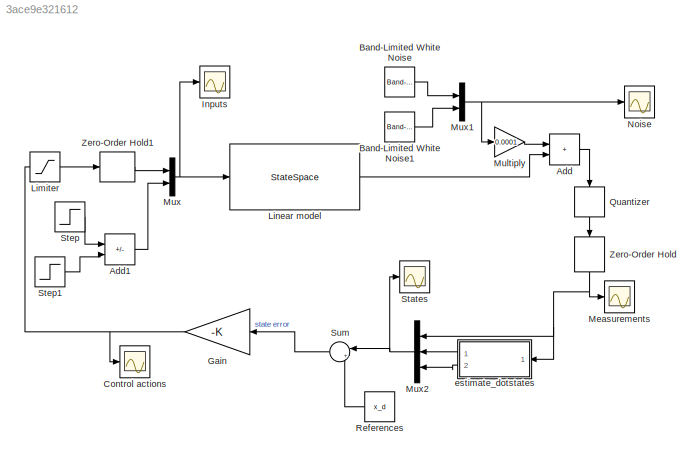
MODEL slx_3ace9e321612
KIND model
CONFIG AbsTol = auto
CONFIG EnableMultiTasking = off
CONFIG FixedStep = auto
CONFIG MaxStep = auto
CONFIG MinStep = auto
CONFIG RelTol = 1e-3
CONFIG SampleTimeConstraint = Unconstrained
CONFIG SolverName = VariableStepAuto
CONFIG StartTime = 0.0
CONFIG StopTime = 20
BLOCK [Sum] Add
  IconShape = rectangular
  Ports = [2, 1]
BLOCK [Sum] Add1
  IconShape = rectangular
  Inputs = +-
  Ports = [2, 1]
BLOCK [Reference] Band-Limited White Noise  REF=simulink/Sources/Band-Limited
White Noise
  Ports = [0, 1]
  SourceBlock = simulink/Sources/Band-Limited\nWhite Noise
  SourceProductBaseCode = SL
  SourceType = Band-Limited White Noise.
BLOCK [Reference] Band-Limited White Noise1  REF=simulink/Sources/Band-Limited
White Noise
  Ports = [0, 1]
  SourceBlock = simulink/Sources/Band-Limited\nWhite Noise
  SourceProductBaseCode = SL
  SourceType = Band-Limited White Noise.
BLOCK [Scope] Control actions
  Floating = off
  NumInputPorts = 1
  Ports = [1]
  ScopeSpecificationString = Simulink.scopes.TimeScopeBlockCfg('CurrentConfiguration', extmgr.ConfigurationSet(extmgr.Configuration('Core','General UI',true),extmgr.Configuration('Core','Source UI',true),extmgr.Configuration('Sources','WiredSimulink',true,'DataLoggingVariableName','ScopeData3'),extmgr.Configuration('Visuals','Time Domain',true,'SerializedDisplays',{struct('MinYLimReal','-7.81483','MaxYLimReal','2.23585','YLab...<+1422ch>
BLOCK [Gain] Gain
  Gain = -K
  Multiplication = Matrix(K*u) (u vector)
BLOCK [Scope] Inputs
  Floating = off
  NumInputPorts = 1
  Ports = [1]
  ScopeSpecificationString = Simulink.scopes.TimeScopeBlockCfg('CurrentConfiguration', extmgr.ConfigurationSet(extmgr.Configuration('Core','General UI',true),extmgr.Configuration('Core','Source UI',true),extmgr.Configuration('Sources','WiredSimulink',true,'DataLoggingVariableName','ScopeData2'),extmgr.Configuration('Visuals','Time Domain',true,'SerializedDisplays',{struct('MinYLimReal','0.03347','MaxYLimReal','0.15072','YLabe...<+1421ch>
BLOCK [Saturate] Limiter
  LowerLimit = -5
  UpperLimit = 5
BLOCK [StateSpace] Linear model
  A = sys.A
  B = [sys.B,dist]
  C = sys.C
  D = [sys.D,zeros(2,1)]
  InitialCondition = initial_conditions'
  Ports = [1, 1]
BLOCK [Scope] Measurements
  Floating = off
  NumInputPorts = 1
  Ports = [1]
  ScopeSpecificationString = Simulink.scopes.TimeScopeBlockCfg('CurrentConfiguration', extmgr.ConfigurationSet(extmgr.Configuration('Core','General UI',true),extmgr.Configuration('Core','Source UI',true),extmgr.Configuration('Sources','WiredSimulink',true,'DataLoggingVariableName','ScopeData3'),extmgr.Configuration('Visuals','Time Domain',true,'SerializedDisplays',{struct('MinYLimReal','-0.1268','MaxYLimReal','0.05783','YLabe...<+1495ch>
BLOCK [Gain] Multiply
  Gain = 0.0001
BLOCK [Mux] Mux
  DisplayOption = bar
  Inputs = 2
  Ports = [2, 1]
BLOCK [Mux] Mux1
  DisplayOption = bar
  Inputs = 2
  Ports = [2, 1]
BLOCK [Mux] Mux2
  DisplayOption = bar
  Inputs = 3
  Ports = [3, 1]
BLOCK [Scope] Noise
  Floating = off
  NumInputPorts = 1
  Ports = [1]
  ScopeSpecificationString = Simulink.scopes.TimeScopeBlockCfg('CurrentConfiguration', extmgr.ConfigurationSet(extmgr.Configuration('Core','General UI',true),extmgr.Configuration('Core','Source UI',true),extmgr.Configuration('Sources','WiredSimulink',true,'DataLoggingVariableName','ScopeData4'),extmgr.Configuration('Visuals','Time Domain',true,'SerializedDisplays',{struct('MinYLimReal','-20.79644','MaxYLimReal','21.90807','YL...<+1417ch>
BLOCK [Quantizer] Quantizer
  NameLocation = left
  QuantizationInterval = quantisation_step
BLOCK [Constant] References
  Value = x_d
BLOCK [Scope] States
  Floating = off
  NumInputPorts = 1
  Ports = [1]
  ScopeSpecificationString = Simulink.scopes.TimeScopeBlockCfg('CurrentConfiguration', extmgr.ConfigurationSet(extmgr.Configuration('Core','General UI',true),extmgr.Configuration('Core','Source UI',true),extmgr.Configuration('Sources','WiredSimulink',true,'DataLoggingVariableName','ScopeData1'),extmgr.Configuration('Visuals','Time Domain',true,'SerializedDisplays',{struct('MinYLimReal','-0.76845','MaxYLimReal','0.32583','YLab...<+1542ch>
BLOCK [Step] Step
  SampleTime = Ts
  Time = 8
BLOCK [Step] Step1
  SampleTime = Ts
  Time = 8.1
BLOCK [Sum] Sum
  Inputs = |+-
  NameLocation = top
  Ports = [2, 1]
BLOCK [ZeroOrderHold] Zero-Order Hold
  NameLocation = left
  SampleTime = Ts
BLOCK [ZeroOrderHold] Zero-Order Hold1
  SampleTime = Ts
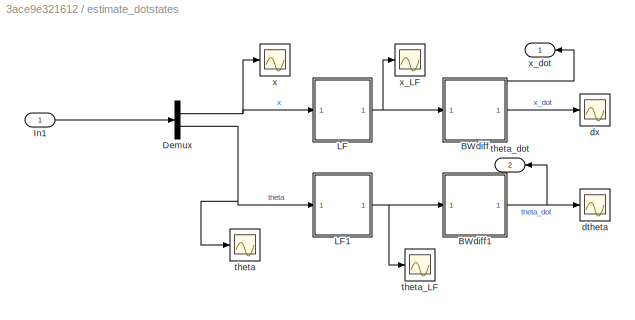
BLOCK [SubSystem] estimate_dotstates
  Ports = [1, 2]
  RequestExecContextInheritance = off
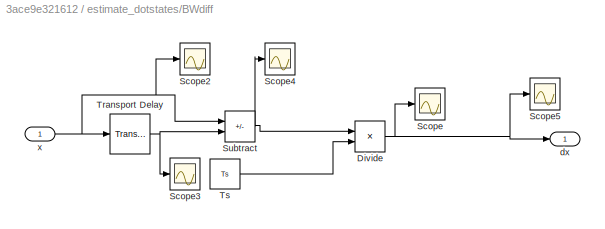
BLOCK [SubSystem] estimate_dotstates/BWdiff
  Ports = [1, 1]
  RequestExecContextInheritance = off
BLOCK [Product] estimate_dotstates/BWdiff/Divide
  Inputs = */
  Ports = [2, 1]
BLOCK [Scope] estimate_dotstates/BWdiff/Scope
  Floating = off
  NumInputPorts = 1
  Ports = [1]
  ScopeSpecificationString = Simulink.scopes.TimeScopeBlockCfg('CurrentConfiguration', extmgr.ConfigurationSet(extmgr.Configuration('Core','General UI',true),extmgr.Configuration('Core','Source UI',true),extmgr.Configuration('Sources','WiredSimulink',true,'DataLoggingVariableName','ScopeData2'),extmgr.Configuration('Visuals','Time Domain',true,'SerializedDisplays',{struct('MinYLimReal','-0.00094','MaxYLimReal','0.01541','YLab...<+1384ch>
BLOCK [Scope] estimate_dotstates/BWdiff/Scope2
  Floating = off
  NumInputPorts = 1
  Ports = [1]
  ScopeSpecificationString = Simulink.scopes.TimeScopeBlockCfg('CurrentConfiguration', extmgr.ConfigurationSet(extmgr.Configuration('Core','General UI',true),extmgr.Configuration('Core','Source UI',true),extmgr.Configuration('Sources','WiredSimulink',true,'DataLoggingVariableName','ScopeData3'),extmgr.Configuration('Visuals','Time Domain',true,'SerializedDisplays',{struct('MinYLimReal','-0.25249','MaxYLimReal','0.14027','YLab...<+1404ch>
BLOCK [Scope] estimate_dotstates/BWdiff/Scope3
  Floating = off
  NumInputPorts = 1
  Ports = [1]
  ScopeSpecificationString = Simulink.scopes.TimeScopeBlockCfg('CurrentConfiguration', extmgr.ConfigurationSet(extmgr.Configuration('Core','General UI',true),extmgr.Configuration('Core','Source UI',true),extmgr.Configuration('Sources','WiredSimulink',true,'DataLoggingVariableName','ScopeData4'),extmgr.Configuration('Visuals','Time Domain',true,'SerializedDisplays',{struct('MinYLimReal','-0.25249','MaxYLimReal','0.14027','YLab...<+1415ch>
BLOCK [Scope] estimate_dotstates/BWdiff/Scope4
  Floating = off
  NumInputPorts = 1
  Ports = [1]
  ScopeSpecificationString = Simulink.scopes.TimeScopeBlockCfg('CurrentConfiguration', extmgr.ConfigurationSet(extmgr.Configuration('Core','General UI',true),extmgr.Configuration('Core','Source UI',true),extmgr.Configuration('Sources','WiredSimulink',true,'DataLoggingVariableName','ScopeData5'),extmgr.Configuration('Visuals','Time Domain',true,'SerializedDisplays',{struct('MinYLimReal','-0.00051','MaxYLimReal','0.00046','YLab...<+1415ch>
BLOCK [Scope] estimate_dotstates/BWdiff/Scope5
  Floating = off
  NumInputPorts = 1
  Ports = [1]
  ScopeSpecificationString = Simulink.scopes.TimeScopeBlockCfg('CurrentConfiguration', extmgr.ConfigurationSet(extmgr.Configuration('Core','General UI',true),extmgr.Configuration('Core','Source UI',true),extmgr.Configuration('Sources','WiredSimulink',true,'DataLoggingVariableName','ScopeData6'),extmgr.Configuration('Visuals','Time Domain',true,'SerializedDisplays',{struct('MinYLimReal','-0.000029','MaxYLimReal','0.00005','YLa...<+1388ch>
BLOCK [Sum] estimate_dotstates/BWdiff/Subtract
  IconShape = rectangular
  Inputs = +-
  Ports = [2, 1]
BLOCK [TransportDelay] estimate_dotstates/BWdiff/Transport Delay
  DelayTime = Ts
  Ports = [1, 1]
BLOCK [Constant] estimate_dotstates/BWdiff/Ts
  Value = Ts
BLOCK [Outport] estimate_dotstates/BWdiff/dx
BLOCK [Inport] estimate_dotstates/BWdiff/x
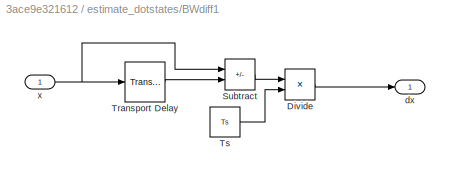
BLOCK [SubSystem] estimate_dotstates/BWdiff1
  Ports = [1, 1]
  RequestExecContextInheritance = off
BLOCK [Product] estimate_dotstates/BWdiff1/Divide
  Inputs = */
  Ports = [2, 1]
BLOCK [Sum] estimate_dotstates/BWdiff1/Subtract
  IconShape = rectangular
  Inputs = +-
  Ports = [2, 1]
BLOCK [TransportDelay] estimate_dotstates/BWdiff1/Transport Delay
  DelayTime = Ts
  Ports = [1, 1]
BLOCK [Constant] estimate_dotstates/BWdiff1/Ts
  Value = Ts
BLOCK [Outport] estimate_dotstates/BWdiff1/dx
BLOCK [Inport] estimate_dotstates/BWdiff1/x
BLOCK [Demux] estimate_dotstates/Demux
  Outputs = 2
  Ports = [1, 2]
BLOCK [Inport] estimate_dotstates/In1
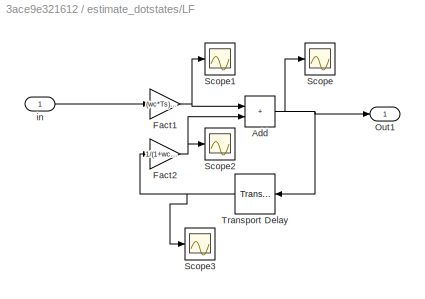
BLOCK [SubSystem] estimate_dotstates/LF
  Ports = [1, 1]
  RequestExecContextInheritance = off
BLOCK [Sum] estimate_dotstates/LF/Add
  IconShape = rectangular
  Ports = [2, 1]
BLOCK [Gain] estimate_dotstates/LF/Fact1
  Gain = (wc*Ts)/(1+wc*Ts)
BLOCK [Gain] estimate_dotstates/LF/Fact2
  Gain = 1/(1+wc*Ts)
BLOCK [Outport] estimate_dotstates/LF/Out1
BLOCK [Scope] estimate_dotstates/LF/Scope
  Floating = off
  NumInputPorts = 1
  Ports = [1]
  ScopeSpecificationString = Simulink.scopes.TimeScopeBlockCfg('CurrentConfiguration', extmgr.ConfigurationSet(extmgr.Configuration('Core','General UI',true),extmgr.Configuration('Core','Source UI',true),extmgr.Configuration('Sources','WiredSimulink',true,'DataLoggingVariableName','ScopeData7'),extmgr.Configuration('Visuals','Time Domain',true,'SerializedDisplays',{struct('MinYLimReal','-0.17621','MaxYLimReal','0.22798','YLab...<+1381ch>
BLOCK [Scope] estimate_dotstates/LF/Scope1
  Floating = off
  NumInputPorts = 1
  Ports = [1]
  ScopeSpecificationString = Simulink.scopes.TimeScopeBlockCfg('CurrentConfiguration', extmgr.ConfigurationSet(extmgr.Configuration('Core','General UI',true),extmgr.Configuration('Core','Source UI',true),extmgr.Configuration('Sources','WiredSimulink',true,'DataLoggingVariableName','ScopeData8'),extmgr.Configuration('Visuals','Time Domain',true,'SerializedDisplays',{struct('MinYLimReal','0.00016','MaxYLimReal','0.00153','YLabe...<+1444ch>
BLOCK [Scope] estimate_dotstates/LF/Scope2
  Floating = off
  NumInputPorts = 1
  Ports = [1]
  ScopeSpecificationString = Simulink.scopes.TimeScopeBlockCfg('CurrentConfiguration', extmgr.ConfigurationSet(extmgr.Configuration('Core','General UI',true),extmgr.Configuration('Core','Source UI',true),extmgr.Configuration('Sources','WiredSimulink',true,'DataLoggingVariableName','ScopeData9'),extmgr.Configuration('Visuals','Time Domain',true,'SerializedDisplays',{struct('MinYLimReal','-0.00032','MaxYLimReal','0.00162','YLab...<+1412ch>
BLOCK [Scope] estimate_dotstates/LF/Scope3
  Floating = off
  NumInputPorts = 1
  Ports = [1]
  ScopeSpecificationString = Simulink.scopes.TimeScopeBlockCfg('CurrentConfiguration', extmgr.ConfigurationSet(extmgr.Configuration('Core','General UI',true),extmgr.Configuration('Core','Source UI',true),extmgr.Configuration('Sources','WiredSimulink',true,'DataLoggingVariableName','ScopeData1'),extmgr.Configuration('Visuals','Time Domain',true),extmgr.Configuration('Tools','Plot Navigation',true),extmgr.Configuration('Tools',...<+40ch>
BLOCK [TransportDelay] estimate_dotstates/LF/Transport Delay
  DelayTime = Ts
  Ports = [1, 1]
BLOCK [Inport] estimate_dotstates/LF/in
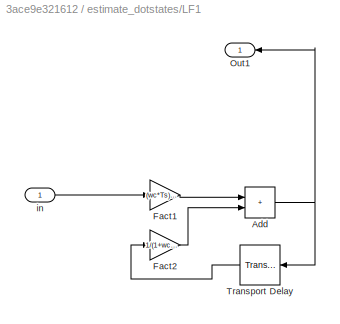
BLOCK [SubSystem] estimate_dotstates/LF1
  Ports = [1, 1]
  RequestExecContextInheritance = off
BLOCK [Sum] estimate_dotstates/LF1/Add
  IconShape = rectangular
  Ports = [2, 1]
BLOCK [Gain] estimate_dotstates/LF1/Fact1
  Gain = (wc*Ts)/(1+wc*Ts)
BLOCK [Gain] estimate_dotstates/LF1/Fact2
  Gain = 1/(1+wc*Ts)
BLOCK [Outport] estimate_dotstates/LF1/Out1
BLOCK [TransportDelay] estimate_dotstates/LF1/Transport Delay
  DelayTime = Ts
  Ports = [1, 1]
BLOCK [Inport] estimate_dotstates/LF1/in
BLOCK [Scope] estimate_dotstates/dtheta
  Floating = off
  NumInputPorts = 1
  Ports = [1]
  ScopeSpecificationString = Simulink.scopes.TimeScopeBlockCfg('CurrentConfiguration', extmgr.ConfigurationSet(extmgr.Configuration('Core','General UI',true),extmgr.Configuration('Core','Source UI',true),extmgr.Configuration('Sources','WiredSimulink',true,'DataLoggingVariableName','ScopeData2'),extmgr.Configuration('Visuals','Time Domain',true,'SerializedDisplays',{struct('MinYLimReal','-0.13746','MaxYLimReal','0.29087','YLab...<+1368ch>
BLOCK [Scope] estimate_dotstates/dx
  Floating = off
  NumInputPorts = 1
  Ports = [1]
  ScopeSpecificationString = Simulink.scopes.TimeScopeBlockCfg('CurrentConfiguration', extmgr.ConfigurationSet(extmgr.Configuration('Core','General UI',true),extmgr.Configuration('Core','Source UI',true),extmgr.Configuration('Sources','WiredSimulink',true,'DataLoggingVariableName','ScopeData1'),extmgr.Configuration('Visuals','Time Domain',true,'SerializedDisplays',{struct('MinYLimReal','-0.62524','MaxYLimReal','0.30745','YLab...<+1394ch>
BLOCK [Scope] estimate_dotstates/theta
  Floating = off
  NumInputPorts = 1
  Ports = [1]
  ScopeSpecificationString = Simulink.scopes.TimeScopeBlockCfg('CurrentConfiguration', extmgr.ConfigurationSet(extmgr.Configuration('Core','General UI',true),extmgr.Configuration('Core','Source UI',true),extmgr.Configuration('Sources','WiredSimulink',true,'DataLoggingVariableName','ScopeData2'),extmgr.Configuration('Visuals','Time Domain',true,'SerializedDisplays',{struct('MinYLimReal','-0.12556','MaxYLimReal','0.05862','YLab...<+1364ch>
BLOCK [Scope] estimate_dotstates/theta_LF
  Floating = off
  NumInputPorts = 1
  Ports = [1]
  ScopeSpecificationString = Simulink.scopes.TimeScopeBlockCfg('CurrentConfiguration', extmgr.ConfigurationSet(extmgr.Configuration('Core','General UI',true),extmgr.Configuration('Core','Source UI',true),extmgr.Configuration('Sources','WiredSimulink',true,'DataLoggingVariableName','ScopeData6'),extmgr.Configuration('Visuals','Time Domain',true),extmgr.Configuration('Tools','Plot Navigation',true),extmgr.Configuration('Tools',...<+40ch>
BLOCK [Outport] estimate_dotstates/theta_dot
  Port = 2
BLOCK [Scope] estimate_dotstates/x
  Floating = off
  NumInputPorts = 1
  Ports = [1]
  ScopeSpecificationString = Simulink.scopes.TimeScopeBlockCfg('CurrentConfiguration', extmgr.ConfigurationSet(extmgr.Configuration('Core','General UI',true),extmgr.Configuration('Core','Source UI',true),extmgr.Configuration('Sources','WiredSimulink',true,'DataLoggingVariableName','ScopeData1'),extmgr.Configuration('Visuals','Time Domain',true,'SerializedDisplays',{struct('MinYLimReal','-0.12634','MaxYLimReal','0.05371','YLab...<+1389ch>
BLOCK [Scope] estimate_dotstates/x_LF
  Floating = off
  NumInputPorts = 1
  Ports = [1]
  ScopeSpecificationString = Simulink.scopes.TimeScopeBlockCfg('CurrentConfiguration', extmgr.ConfigurationSet(extmgr.Configuration('Core','General UI',true),extmgr.Configuration('Core','Source UI',true),extmgr.Configuration('Sources','WiredSimulink',true,'DataLoggingVariableName','ScopeData5'),extmgr.Configuration('Visuals','Time Domain',true,'SerializedDisplays',{struct('MinYLimReal','-0.1109','MaxYLimReal','0.05027','YLabe...<+1387ch>
BLOCK [Outport] estimate_dotstates/x_dot
LINE Add1:1 -> Mux:2
LINE Add:1 -> Quantizer:1
LINE Band-Limited White Noise1:1 -> Mux1:2
LINE Band-Limited White Noise:1 -> Mux1:1
NET Gain:1 -> Control actions:1, Limiter:1
LINE Limiter:1 -> Zero-Order Hold1:1
LINE Linear model:1 -> Add:2
LINE Multiply:1 -> Add:1
NET Mux1:1 -> Multiply:1, Noise:1
NET Mux2:1 -> States:1, Sum:1
NET Mux:1 -> Inputs:1, Linear model:1
LINE Quantizer:1 -> Zero-Order Hold:1
LINE References:1 -> Sum:2
LINE Step1:1 -> Add1:2
LINE Step:1 -> Add1:1
LINE Sum:1 -> Gain:1
LINE Zero-Order Hold1:1 -> Mux:1
NET Zero-Order Hold:1 -> Measurements:1, Mux2:1, estimate_dotstates:1
NET estimate_dotstates/BWdiff/Divide:1 -> estimate_dotstates/BWdiff/Scope5:1, estimate_dotstates/BWdiff/Scope:1, estimate_dotstates/BWdiff/dx:1
NET estimate_dotstates/BWdiff/Subtract:1 -> estimate_dotstates/BWdiff/Divide:1, estimate_dotstates/BWdiff/Scope4:1
NET estimate_dotstates/BWdiff/Transport Delay:1 -> estimate_dotstates/BWdiff/Scope3:1, estimate_dotstates/BWdiff/Subtract:2
LINE estimate_dotstates/BWdiff/Ts:1 -> estimate_dotstates/BWdiff/Divide:2
NET estimate_dotstates/BWdiff/x:1 -> estimate_dotstates/BWdiff/Scope2:1, estimate_dotstates/BWdiff/Subtract:1, estimate_dotstates/BWdiff/Transport Delay:1
LINE estimate_dotstates/BWdiff1/Divide:1 -> estimate_dotstates/BWdiff1/dx:1
LINE estimate_dotstates/BWdiff1/Subtract:1 -> estimate_dotstates/BWdiff1/Divide:1
LINE estimate_dotstates/BWdiff1/Transport Delay:1 -> estimate_dotstates/BWdiff1/Subtract:2
LINE estimate_dotstates/BWdiff1/Ts:1 -> estimate_dotstates/BWdiff1/Divide:2
NET estimate_dotstates/BWdiff1/x:1 -> estimate_dotstates/BWdiff1/Subtract:1, estimate_dotstates/BWdiff1/Transport Delay:1
NET estimate_dotstates/BWdiff1:1 -> estimate_dotstates/dtheta:1, estimate_dotstates/theta_dot:1
NET estimate_dotstates/BWdiff:1 -> estimate_dotstates/dx:1, estimate_dotstates/x_dot:1
NET estimate_dotstates/Demux:1 -> estimate_dotstates/LF:1, estimate_dotstates/x:1
NET estimate_dotstates/Demux:2 -> estimate_dotstates/LF1:1, estimate_dotstates/theta:1
LINE estimate_dotstates/In1:1 -> estimate_dotstates/Demux:1
NET estimate_dotstates/LF/Add:1 -> estimate_dotstates/LF/Out1:1, estimate_dotstates/LF/Scope:1, estimate_dotstates/LF/Transport Delay:1
NET estimate_dotstates/LF/Fact1:1 -> estimate_dotstates/LF/Add:1, estimate_dotstates/LF/Scope1:1
NET estimate_dotstates/LF/Fact2:1 -> estimate_dotstates/LF/Add:2, estimate_dotstates/LF/Scope2:1
NET estimate_dotstates/LF/Transport Delay:1 -> estimate_dotstates/LF/Fact2:1, estimate_dotstates/LF/Scope3:1
LINE estimate_dotstates/LF/in:1 -> estimate_dotstates/LF/Fact1:1
NET estimate_dotstates/LF1/Add:1 -> estimate_dotstates/LF1/Out1:1, estimate_dotstates/LF1/Transport Delay:1
LINE estimate_dotstates/LF1/Fact1:1 -> estimate_dotstates/LF1/Add:1
LINE estimate_dotstates/LF1/Fact2:1 -> estimate_dotstates/LF1/Add:2
LINE estimate_dotstates/LF1/Transport Delay:1 -> estimate_dotstates/LF1/Fact2:1
LINE estimate_dotstates/LF1/in:1 -> estimate_dotstates/LF1/Fact1:1
NET estimate_dotstates/LF1:1 -> estimate_dotstates/BWdiff1:1, estimate_dotstates/theta_LF:1
NET estimate_dotstates/LF:1 -> estimate_dotstates/BWdiff:1, estimate_dotstates/x_LF:1
LINE estimate_dotstates:1 -> Mux2:2
LINE estimate_dotstates:2 -> Mux2:3
note: NET lines group one-source signal fan-out (src -> all destinations, sorted); 1:1 wires keep LINE
